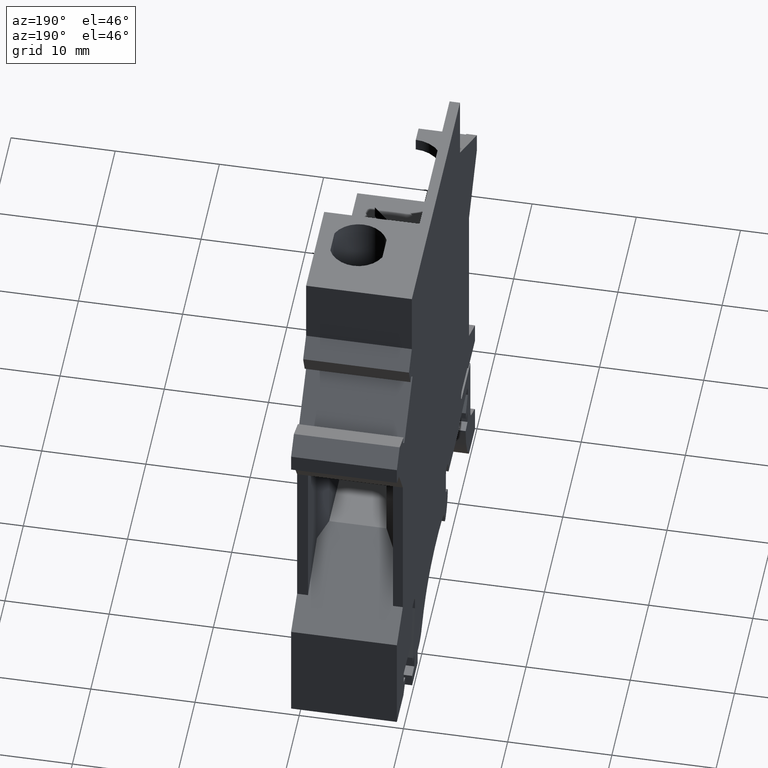
[diagram: clean part render]
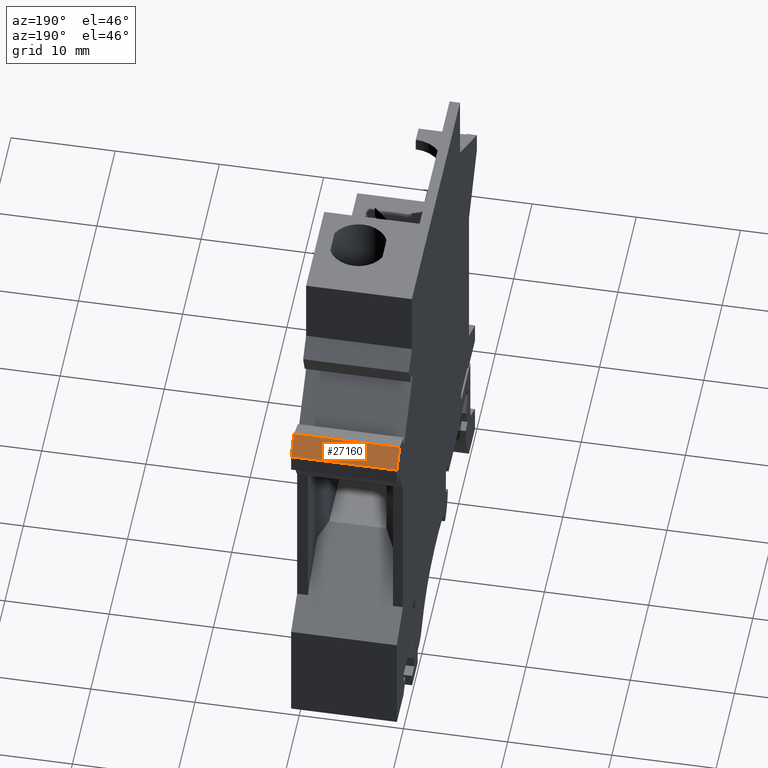
[diagram: same view with one face highlighted and labeled with its STEP entity id]
A machine part, auxiliary view. The second image highlights one B-rep face of the part: STEP entity #27160.
In plain terms, the highlighted planar face has unit normal (0, 0.7071, 0.7071).
Its self-contained STEP definition (entity closure, byte-faithful):
#6710=CARTESIAN_POINT('',(3.77757231799447,31.4606919999999,12.));
#6720=VERTEX_POINT('',#6710);
#6750=CARTESIAN_POINT('',(6.53826431799365,28.7,12.));
#6760=DIRECTION('',(-0.707106781186461,0.707106781186634,0.));
#6770=VECTOR('',#6760,1.);
#6780=LINE('',#6750,#6770);
#6790=CARTESIAN_POINT('',(2.24462806522066,32.9936362527741,12.));
#6800=VERTEX_POINT('',#6790);
#6810=EDGE_CURVE('',#6720,#6800,#6780,.T.);
#26670=CARTESIAN_POINT('',(3.77757231799447,31.4606919999999,12.));
#26680=DIRECTION('',(0.,0.,1.));
#26690=VECTOR('',#26680,1.);
#26700=LINE('',#26670,#26690);
#26710=CARTESIAN_POINT('',(3.77757231799447,31.4606919999999,22.15));
#26720=VERTEX_POINT('',#26710);
#26730=EDGE_CURVE('',#6720,#26720,#26700,.T.);
#26930=CARTESIAN_POINT('',(3.63112570858763,31.6071386094067,24.));
#26940=DIRECTION('',(0.707106781186634,0.707106781186461,0.));
#26950=DIRECTION('',(0.707106781186461,-0.707106781186634,0.));
#26960=AXIS2_PLACEMENT_3D('',#26930,#26940,#26950);
#26970=PLANE('',#26960);
#26980=CARTESIAN_POINT('',(2.24462806522066,32.9936362527741,12.));
#26990=DIRECTION('',(0.,0.,1.));
#27000=VECTOR('',#26990,1.);
#27010=LINE('',#26980,#27000);
#27020=CARTESIAN_POINT('',(2.24462806522066,32.9936362527741,22.15));
#27030=VERTEX_POINT('',#27020);
#27040=EDGE_CURVE('',#6800,#27030,#27010,.T.);
#27050=ORIENTED_EDGE('',*,*,#27040,.T.);
#27060=ORIENTED_EDGE('',*,*,#6810,.T.);
#27070=ORIENTED_EDGE('',*,*,#26730,.F.);
#27080=CARTESIAN_POINT('',(6.53826431799365,28.7,22.15));
#27090=DIRECTION('',(0.707106781186461,-0.707106781186634,0.));
#27100=VECTOR('',#27090,1.);
#27110=LINE('',#27080,#27100);
#27120=EDGE_CURVE('',#27030,#26720,#27110,.T.);
#27130=ORIENTED_EDGE('',*,*,#27120,.T.);
#27140=EDGE_LOOP('',(#27130,#27070,#27060,#27050));
#27150=FACE_OUTER_BOUND('',#27140,.T.);
#27160=ADVANCED_FACE('',(#27150),#26970,.T.);